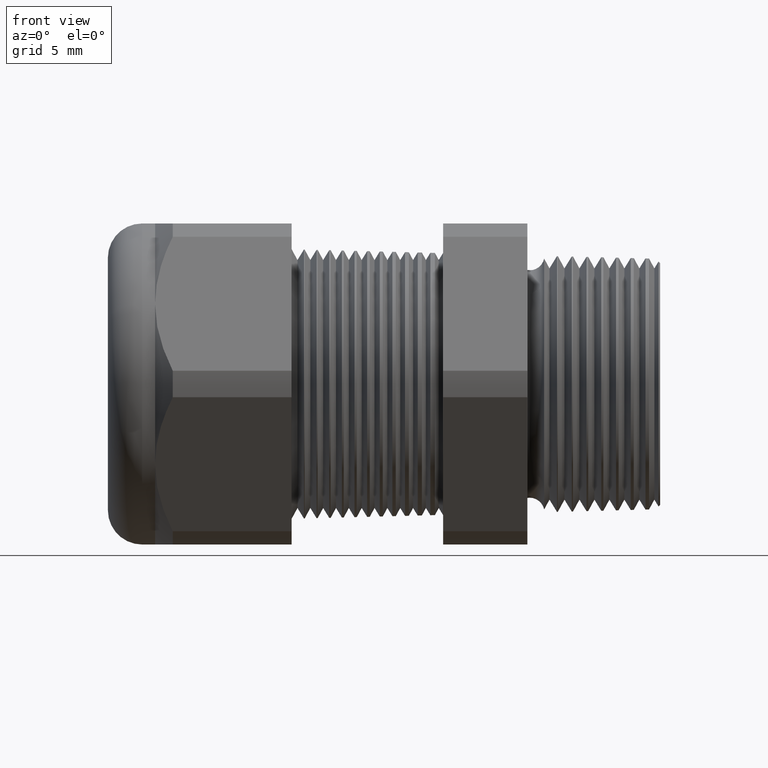
[diagram: clean part render]
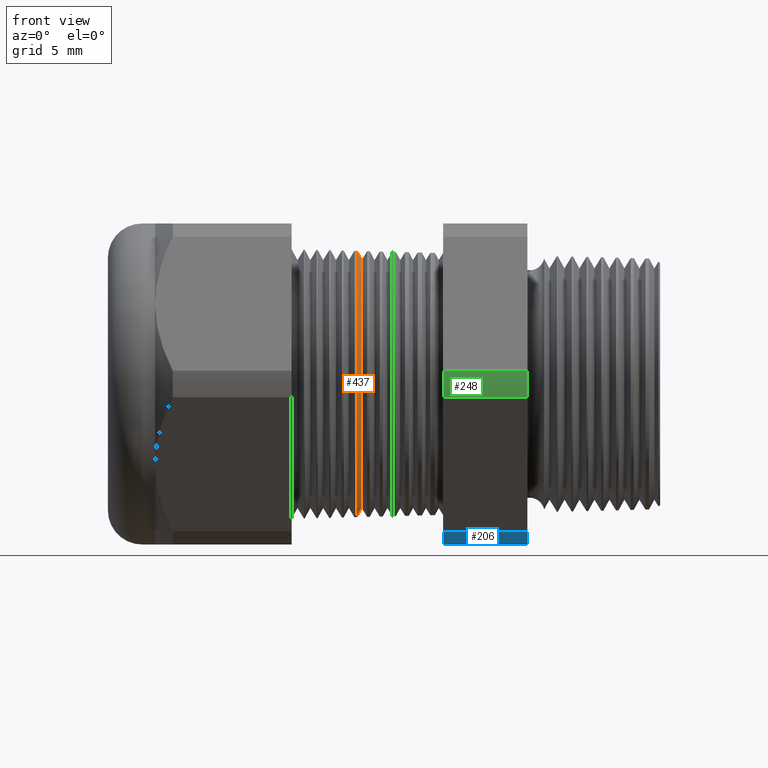
[diagram: same view with three faces highlighted in distinct colors, each labeled with its STEP entity id]
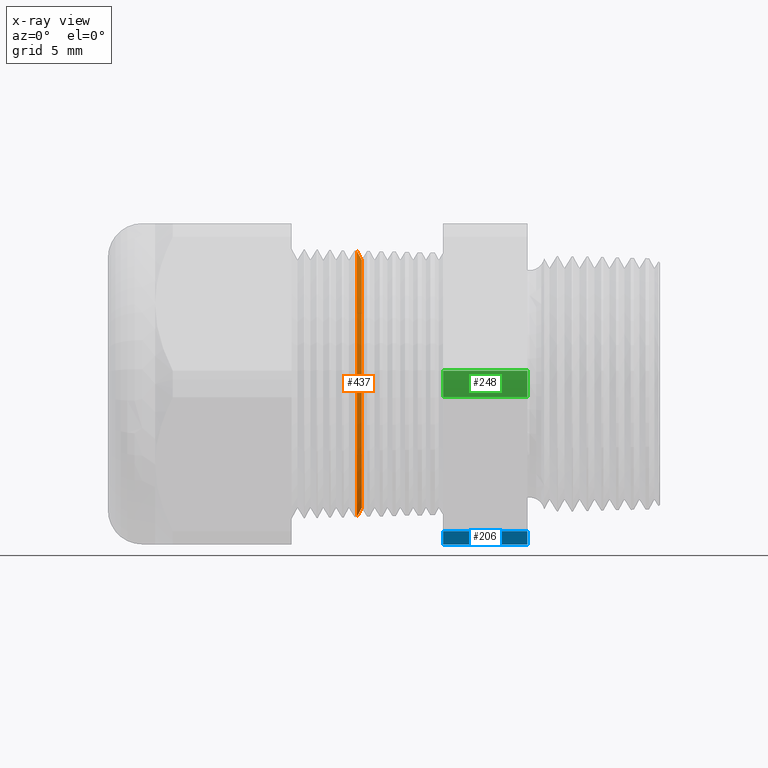
[diagram: x-ray of the same camera — body ghosted, the three highlighted faces saturated]
A machine part, front view with three faces highlighted in distinct colors.
The next image is the same camera in x-ray (body ghosted, the three faces saturated) — at least one of them is partly hidden behind the body in this view.
Their STEP definitions:

[orange] entity #437 — the highlighted conical surface has half-angle 61.5 deg.
#101 = EDGE_CURVE ( 'NONE', #1090, #128, #1369, .T. ) ;
#124 = EDGE_CURVE ( 'NONE', #1091, #125, #1387, .T. ) ;
#125 = VERTEX_POINT ( 'NONE', #1378 ) ;
#128 = VERTEX_POINT ( 'NONE', #1437 ) ;
#417 = ORIENTED_EDGE ( 'NONE', *, *, #101, .T. ) ;
#418 = ORIENTED_EDGE ( 'NONE', *, *, #4570, .T. ) ;
#437 = ADVANCED_FACE ( 'NONE', ( #1858 ), #1857, .T. ) ;
#438 = EDGE_LOOP ( 'NONE', ( #439, #440, #417, #418 ) ) ;
#439 = ORIENTED_EDGE ( 'NONE', *, *, #124, .F. ) ;
#440 = ORIENTED_EDGE ( 'NONE', *, *, #441, .F. ) ;
#441 = EDGE_CURVE ( 'NONE', #1090, #1091, #1851, .T. ) ;
#1090 = VERTEX_POINT ( 'NONE', #2988 ) ;
#1091 = VERTEX_POINT ( 'NONE', #2987 ) ;
#1366 = DIRECTION ( 'NONE',  ( -0.4771587602596191200, 0.0000000000000000000, 0.8788171126619595000 ) ) ;
#1367 = VECTOR ( 'NONE', #1366, 39.37007874015748100 ) ;
#1368 = CARTESIAN_POINT ( 'NONE',  ( -0.7108661417322833500, 0.0000000000000000000, 0.3150000000000000000 ) ) ;
#1369 = LINE ( 'NONE', #1368, #1367 ) ;
#1378 = CARTESIAN_POINT ( 'NONE',  ( -0.7087027132438038500, 3.809674822999214100E-017, -0.3110154603959032200 ) ) ;
#1379 = DIRECTION ( 'NONE',  ( -0.4771587602596191200, 1.076240564057387800E-016, -0.8788171126619595000 ) ) ;
#1380 = VECTOR ( 'NONE', #1379, 39.37007874015748100 ) ;
#1381 = CARTESIAN_POINT ( 'NONE',  ( -0.7108661417322833500, 3.857637417314162700E-017, -0.3150000000000000000 ) ) ;
#1387 = LINE ( 'NONE', #1381, #1380 ) ;
#1437 = CARTESIAN_POINT ( 'NONE',  ( -0.7087027132438038500, 0.0000000000000000000, 0.3110154603959032200 ) ) ;
#1848 = DIRECTION ( 'NONE',  ( 0.0000000000000000000, 0.0000000000000000000, -1.000000000000000000 ) ) ;
#1849 = DIRECTION ( 'NONE',  ( 1.000000000000000000, 0.0000000000000000000, 0.0000000000000000000 ) ) ;
#1850 = AXIS2_PLACEMENT_3D ( 'NONE', #1856, #1849, #1848 ) ;
#1851 = CIRCLE ( 'NONE', #1850, 0.2896307351718082600 ) ;
#1853 = DIRECTION ( 'NONE',  ( 0.0000000000000000000, 0.0000000000000000000, 1.000000000000000000 ) ) ;
#1854 = DIRECTION ( 'NONE',  ( -1.000000000000000000, 0.0000000000000000000, 0.0000000000000000000 ) ) ;
#1855 = AXIS2_PLACEMENT_3D ( 'NONE', #1862, #1854, #1853 ) ;
#1856 = CARTESIAN_POINT ( 'NONE',  ( -0.6970917547981793100, 0.0000000000000000000, 0.0000000000000000000 ) ) ;
#1857 = CONICAL_SURFACE ( 'NONE', #1855, 0.3150000000000000000, 1.073377489976500500 ) ;
#1858 = FACE_OUTER_BOUND ( 'NONE', #438, .T. ) ;
#1862 = CARTESIAN_POINT ( 'NONE',  ( -0.7108661417322833500, 0.0000000000000000000, 0.0000000000000000000 ) ) ;
#2987 = CARTESIAN_POINT ( 'NONE',  ( -0.6970917547981793100, 3.677897204110165000E-017, -0.2896307351718082600 ) ) ;
#2988 = CARTESIAN_POINT ( 'NONE',  ( -0.6970917547981793100, 0.0000000000000000000, 0.2896307351718082600 ) ) ;
#3456 = DIRECTION ( 'NONE',  ( 0.0000000000000000000, 0.0000000000000000000, 1.000000000000000000 ) ) ;
#3457 = DIRECTION ( 'NONE',  ( 1.000000000000000000, 0.0000000000000000000, 0.0000000000000000000 ) ) ;
#3458 = CARTESIAN_POINT ( 'NONE',  ( -0.7087027132438038500, 0.0000000000000000000, 0.0000000000000000000 ) ) ;
#3459 = AXIS2_PLACEMENT_3D ( 'NONE', #3458, #3457, #3456 ) ;
#3460 = CIRCLE ( 'NONE', #3459, 0.3110154603959032200 ) ;
#4570 = EDGE_CURVE ( 'NONE', #128, #125, #3460, .T. ) ;

[blue] entity #206 — the highlighted cylindrical surface (partial cylindrical patch) has radius 10.5727 mm, axis along (-1, 0, 0).
#5 = VERTEX_POINT ( 'NONE', #1181 ) ;
#7 = EDGE_CURVE ( 'NONE', #10, #5, #1180, .T. ) ;
#10 = VERTEX_POINT ( 'NONE', #1175 ) ;
#181 = ORIENTED_EDGE ( 'NONE', *, *, #202, .F. ) ;
#182 = ORIENTED_EDGE ( 'NONE', *, *, #7, .F. ) ;
#183 = ORIENTED_EDGE ( 'NONE', *, *, #184, .T. ) ;
#184 = EDGE_CURVE ( 'NONE', #10, #185, #1545, .T. ) ;
#185 = VERTEX_POINT ( 'NONE', #1540 ) ;
#186 = ORIENTED_EDGE ( 'NONE', *, *, #187, .F. ) ;
#187 = EDGE_CURVE ( 'NONE', #203, #185, #1539, .T. ) ;
#202 = EDGE_CURVE ( 'NONE', #5, #203, #1580, .T. ) ;
#203 = VERTEX_POINT ( 'NONE', #1576 ) ;
#206 = ADVANCED_FACE ( 'NONE', ( #1571 ), #1570, .T. ) ;
#207 = EDGE_LOOP ( 'NONE', ( #181, #182, #183, #186 ) ) ;
#1175 = CARTESIAN_POINT ( 'NONE',  ( -0.3100000000000000000, -0.2344281053908202100, -0.3439586107409880500 ) ) ;
#1176 = DIRECTION ( 'NONE',  ( 0.0000000000000000000, 0.0000000000000000000, -1.000000000000000000 ) ) ;
#1177 = DIRECTION ( 'NONE',  ( 1.000000000000000000, 0.0000000000000000000, 0.0000000000000000000 ) ) ;
#1178 = CARTESIAN_POINT ( 'NONE',  ( -0.3100000000000000000, 0.0000000000000000000, 0.0000000000000000000 ) ) ;
#1179 = AXIS2_PLACEMENT_3D ( 'NONE', #1178, #1177, #1176 ) ;
#1180 = CIRCLE ( 'NONE', #1179, 0.4162500000000000100 ) ;
#1181 = CARTESIAN_POINT ( 'NONE',  ( -0.3100000000000000000, -0.1806628420566883900, -0.3750000000000001100 ) ) ;
#1535 = DIRECTION ( 'NONE',  ( 0.0000000000000000000, 0.0000000000000000000, 1.000000000000000000 ) ) ;
#1536 = DIRECTION ( 'NONE',  ( -1.000000000000000000, 0.0000000000000000000, 0.0000000000000000000 ) ) ;
#1537 = CARTESIAN_POINT ( 'NONE',  ( -0.5068503937007874400, 0.0000000000000000000, 0.0000000000000000000 ) ) ;
#1538 = AXIS2_PLACEMENT_3D ( 'NONE', #1537, #1536, #1535 ) ;
#1539 = CIRCLE ( 'NONE', #1538, 0.4162500000000000100 ) ;
#1540 = CARTESIAN_POINT ( 'NONE',  ( -0.5068503937007874400, -0.2344281053908202100, -0.3439586107409880500 ) ) ;
#1541 = DIRECTION ( 'NONE',  ( -1.000000000000000000, 0.0000000000000000000, 0.0000000000000000000 ) ) ;
#1543 = VECTOR ( 'NONE', #1541, 39.37007874015748100 ) ;
#1544 = CARTESIAN_POINT ( 'NONE',  ( 0.0000000000000000000, -0.2344281053908202100, -0.3439586107409880500 ) ) ;
#1545 = LINE ( 'NONE', #1544, #1543 ) ;
#1564 = DIRECTION ( 'NONE',  ( 0.0000000000000000000, 0.0000000000000000000, 1.000000000000000000 ) ) ;
#1565 = DIRECTION ( 'NONE',  ( -1.000000000000000000, 0.0000000000000000000, 0.0000000000000000000 ) ) ;
#1566 = CARTESIAN_POINT ( 'NONE',  ( 0.0000000000000000000, 0.0000000000000000000, 0.0000000000000000000 ) ) ;
#1567 = AXIS2_PLACEMENT_3D ( 'NONE', #1566, #1565, #1564 ) ;
#1570 = CYLINDRICAL_SURFACE ( 'NONE', #1567, 0.4162500000000000100 ) ;
#1571 = FACE_OUTER_BOUND ( 'NONE', #207, .T. ) ;
#1576 = CARTESIAN_POINT ( 'NONE',  ( -0.5068503937007874400, -0.1806628420566883900, -0.3750000000000001100 ) ) ;
#1577 = DIRECTION ( 'NONE',  ( -1.000000000000000000, 0.0000000000000000000, 0.0000000000000000000 ) ) ;
#1578 = VECTOR ( 'NONE', #1577, 39.37007874015748100 ) ;
#1579 = CARTESIAN_POINT ( 'NONE',  ( 0.0000000000000000000, -0.1806628420566883900, -0.3750000000000001100 ) ) ;
#1580 = LINE ( 'NONE', #1579, #1578 ) ;

[green] entity #248 — the highlighted cylindrical surface (partial cylindrical patch) has radius 10.5727 mm, axis along (-1, 0, 0).
#178 = EDGE_CURVE ( 'NONE', #245, #254, #1489, .T. ) ;
#193 = EDGE_CURVE ( 'NONE', #4488, #245, #1527, .T. ) ;
#245 = VERTEX_POINT ( 'NONE', #1625 ) ;
#248 = ADVANCED_FACE ( 'NONE', ( #1620 ), #1682, .T. ) ;
#249 = EDGE_LOOP ( 'NONE', ( #250, #251, #252, #255 ) ) ;
#250 = ORIENTED_EDGE ( 'NONE', *, *, #193, .F. ) ;
#251 = ORIENTED_EDGE ( 'NONE', *, *, #4487, .F. ) ;
#252 = ORIENTED_EDGE ( 'NONE', *, *, #253, .T. ) ;
#253 = EDGE_CURVE ( 'NONE', #4491, #254, #1677, .T. ) ;
#254 = VERTEX_POINT ( 'NONE', #1673 ) ;
#255 = ORIENTED_EDGE ( 'NONE', *, *, #178, .F. ) ;
#1481 = DIRECTION ( 'NONE',  ( 0.0000000000000000000, 0.0000000000000000000, 1.000000000000000000 ) ) ;
#1482 = DIRECTION ( 'NONE',  ( -1.000000000000000000, 0.0000000000000000000, 0.0000000000000000000 ) ) ;
#1483 = CARTESIAN_POINT ( 'NONE',  ( -0.5068503937007874400, 0.0000000000000000000, 0.0000000000000000000 ) ) ;
#1484 = AXIS2_PLACEMENT_3D ( 'NONE', #1483, #1482, #1481 ) ;
#1489 = CIRCLE ( 'NONE', #1484, 0.4162500000000000100 ) ;
#1524 = DIRECTION ( 'NONE',  ( -1.000000000000000000, 0.0000000000000000000, 0.0000000000000000000 ) ) ;
#1525 = VECTOR ( 'NONE', #1524, 39.37007874015748100 ) ;
#1526 = CARTESIAN_POINT ( 'NONE',  ( 0.0000000000000000000, -0.4150909474475088000, -0.03104138925901237000 ) ) ;
#1527 = LINE ( 'NONE', #1526, #1525 ) ;
#1620 = FACE_OUTER_BOUND ( 'NONE', #249, .T. ) ;
#1625 = CARTESIAN_POINT ( 'NONE',  ( -0.5068503937007874400, -0.4150909474475088000, -0.03104138925901237000 ) ) ;
#1673 = CARTESIAN_POINT ( 'NONE',  ( -0.5068503937007874400, -0.4150909474475088000, 0.03104138925901241800 ) ) ;
#1674 = DIRECTION ( 'NONE',  ( -1.000000000000000000, 0.0000000000000000000, 0.0000000000000000000 ) ) ;
#1675 = VECTOR ( 'NONE', #1674, 39.37007874015748100 ) ;
#1676 = CARTESIAN_POINT ( 'NONE',  ( 0.0000000000000000000, -0.4150909474475088000, 0.03104138925901241800 ) ) ;
#1677 = LINE ( 'NONE', #1676, #1675 ) ;
#1678 = DIRECTION ( 'NONE',  ( 0.0000000000000000000, 0.0000000000000000000, 1.000000000000000000 ) ) ;
#1679 = DIRECTION ( 'NONE',  ( -1.000000000000000000, 0.0000000000000000000, 0.0000000000000000000 ) ) ;
#1680 = CARTESIAN_POINT ( 'NONE',  ( 0.0000000000000000000, 0.0000000000000000000, 0.0000000000000000000 ) ) ;
#1681 = AXIS2_PLACEMENT_3D ( 'NONE', #1680, #1679, #1678 ) ;
#1682 = CYLINDRICAL_SURFACE ( 'NONE', #1681, 0.4162500000000000100 ) ;
#3267 = CARTESIAN_POINT ( 'NONE',  ( -0.3100000000000000000, -0.4150909474475088000, 0.03104138925901241800 ) ) ;
#3273 = CARTESIAN_POINT ( 'NONE',  ( -0.3100000000000000000, -0.4150909474475088000, -0.03104138925901237000 ) ) ;
#3274 = DIRECTION ( 'NONE',  ( 0.0000000000000000000, 0.0000000000000000000, -1.000000000000000000 ) ) ;
#3275 = DIRECTION ( 'NONE',  ( 1.000000000000000000, 0.0000000000000000000, 0.0000000000000000000 ) ) ;
#3276 = CARTESIAN_POINT ( 'NONE',  ( -0.3100000000000000000, 0.0000000000000000000, 0.0000000000000000000 ) ) ;
#3277 = AXIS2_PLACEMENT_3D ( 'NONE', #3276, #3275, #3274 ) ;
#3278 = CIRCLE ( 'NONE', #3277, 0.4162500000000000100 ) ;
#4487 = EDGE_CURVE ( 'NONE', #4491, #4488, #3278, .T. ) ;
#4488 = VERTEX_POINT ( 'NONE', #3273 ) ;
#4491 = VERTEX_POINT ( 'NONE', #3267 ) ;